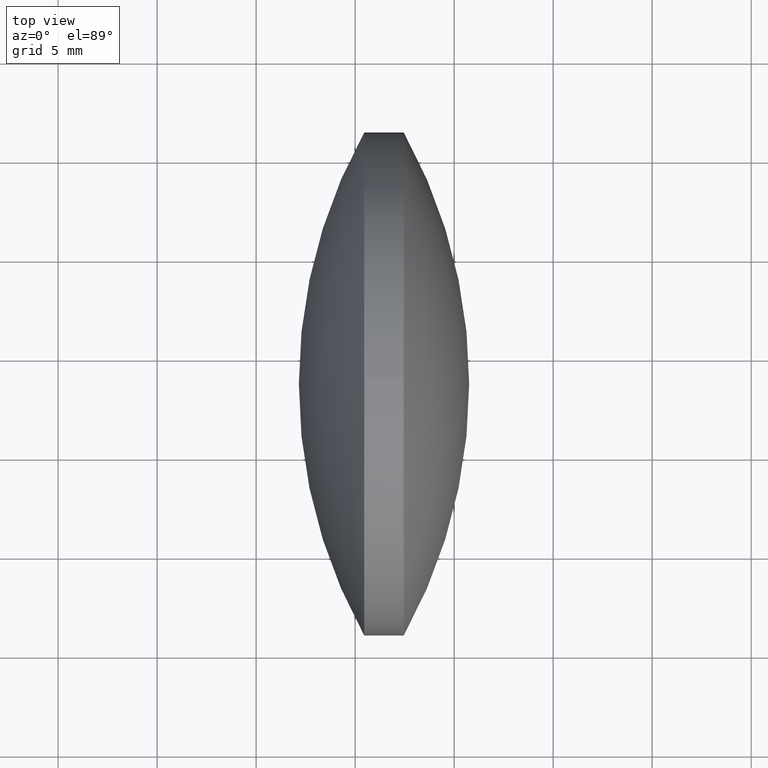
[diagram: clean part render]
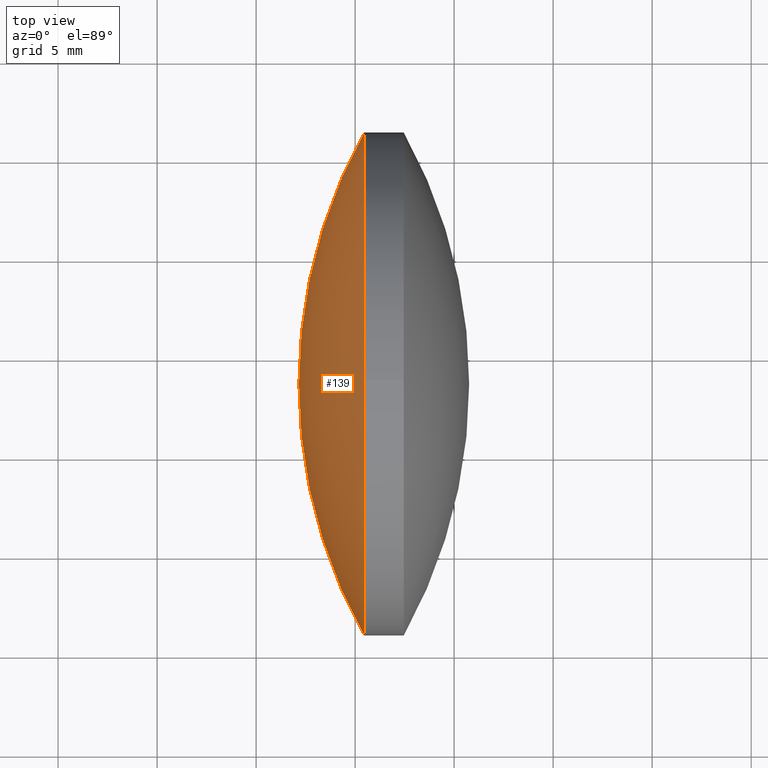
[diagram: same view with one face highlighted and labeled with its STEP entity id]
A machine part, top view. The second image highlights one B-rep face of the part: STEP entity #139.
In plain terms, the highlighted spherical surface has radius 26.0866 mm.
Its self-contained STEP definition (entity closure, byte-faithful):
#12 = AXIS2_PLACEMENT_3D ( 'NONE', #189, #221, #245 ) ;
#18 = CARTESIAN_POINT ( 'NONE',  ( 82.15833663180539800, 48.61611302318477400, 0.0000000000000000000 ) ) ;
#30 = AXIS2_PLACEMENT_3D ( 'NONE', #99, #98, #74 ) ;
#35 = DIRECTION ( 'NONE',  ( 0.0000000000000000000, 1.000000000000000000, 0.0000000000000000000 ) ) ;
#38 = AXIS2_PLACEMENT_3D ( 'NONE', #241, #219, #35 ) ;
#41 = CIRCLE ( 'NONE', #248, 12.69999999999999600 ) ;
#47 = CARTESIAN_POINT ( 'NONE',  ( 85.45852234609111500, 48.61611302318478100, 0.0000000000000000000 ) ) ;
#71 = ORIENTED_EDGE ( 'NONE', *, *, #202, .T. ) ;
#72 = CARTESIAN_POINT ( 'NONE',  ( 85.45852234609111500, 48.61611302318478100, 12.69999999999999600 ) ) ;
#74 = DIRECTION ( 'NONE',  ( 0.0000000000000000000, 0.0000000000000000000, 1.000000000000000000 ) ) ;
#90 = CARTESIAN_POINT ( 'NONE',  ( 85.45852234609111500, 61.31611302318477600, 0.0000000000000000000 ) ) ;
#98 = DIRECTION ( 'NONE',  ( -1.000000000000000000, -0.0000000000000000000, -0.0000000000000000000 ) ) ;
#99 = CARTESIAN_POINT ( 'NONE',  ( 85.45852234609111500, 48.61611302318478100, 0.0000000000000000000 ) ) ;
#113 = VERTEX_POINT ( 'NONE', #90 ) ;
#115 = CIRCLE ( 'NONE', #12, 26.08659643053481900 ) ;
#132 = EDGE_LOOP ( 'NONE', ( #218, #282, #71, #136 ) ) ;
#136 = ORIENTED_EDGE ( 'NONE', *, *, #223, .T. ) ;
#139 = ADVANCED_FACE ( 'NONE', ( #258 ), #184, .T. ) ;
#147 = EDGE_CURVE ( 'NONE', #315, #271, #115, .T. ) ;
#176 = CARTESIAN_POINT ( 'NONE',  ( 85.45852234609111500, 35.91611302318477800, -1.555301434917138000E-015 ) ) ;
#184 = SPHERICAL_SURFACE ( 'NONE', #38, 26.08659643053482200 ) ;
#189 = CARTESIAN_POINT ( 'NONE',  ( 108.2449330623402200, 48.61611302318477400, 0.0000000000000000000 ) ) ;
#202 = EDGE_CURVE ( 'NONE', #207, #113, #311, .T. ) ;
#207 = VERTEX_POINT ( 'NONE', #72 ) ;
#218 = ORIENTED_EDGE ( 'NONE', *, *, #147, .F. ) ;
#219 = DIRECTION ( 'NONE',  ( -0.0000000000000000000, 0.0000000000000000000, -1.000000000000000000 ) ) ;
#221 = DIRECTION ( 'NONE',  ( 0.0000000000000000000, 1.224646799147353200E-016, -1.000000000000000000 ) ) ;
#223 = EDGE_CURVE ( 'NONE', #113, #271, #345, .T. ) ;
#230 = DIRECTION ( 'NONE',  ( -1.000000000000000000, -0.0000000000000000000, -0.0000000000000000000 ) ) ;
#241 = CARTESIAN_POINT ( 'NONE',  ( 108.2449330623402200, 48.61611302318477400, 0.0000000000000000000 ) ) ;
#245 = DIRECTION ( 'NONE',  ( 0.0000000000000000000, 1.000000000000000000, 1.224646799147353500E-016 ) ) ;
#248 = AXIS2_PLACEMENT_3D ( 'NONE', #47, #230, #259 ) ;
#256 = DIRECTION ( 'NONE',  ( 1.000000000000000000, 0.0000000000000000000, 0.0000000000000000000 ) ) ;
#258 = FACE_OUTER_BOUND ( 'NONE', #132, .T. ) ;
#259 = DIRECTION ( 'NONE',  ( 0.0000000000000000000, 0.0000000000000000000, 1.000000000000000000 ) ) ;
#261 = EDGE_CURVE ( 'NONE', #315, #207, #41, .T. ) ;
#271 = VERTEX_POINT ( 'NONE', #18 ) ;
#282 = ORIENTED_EDGE ( 'NONE', *, *, #261, .T. ) ;
#311 = CIRCLE ( 'NONE', #30, 12.69999999999999600 ) ;
#312 = AXIS2_PLACEMENT_3D ( 'NONE', #314, #340, #256 ) ;
#314 = CARTESIAN_POINT ( 'NONE',  ( 108.2449330623402200, 48.61611302318477400, 0.0000000000000000000 ) ) ;
#315 = VERTEX_POINT ( 'NONE', #176 ) ;
#340 = DIRECTION ( 'NONE',  ( -0.0000000000000000000, 0.0000000000000000000, 1.000000000000000000 ) ) ;
#345 = CIRCLE ( 'NONE', #312, 26.08659643053483300 ) ;